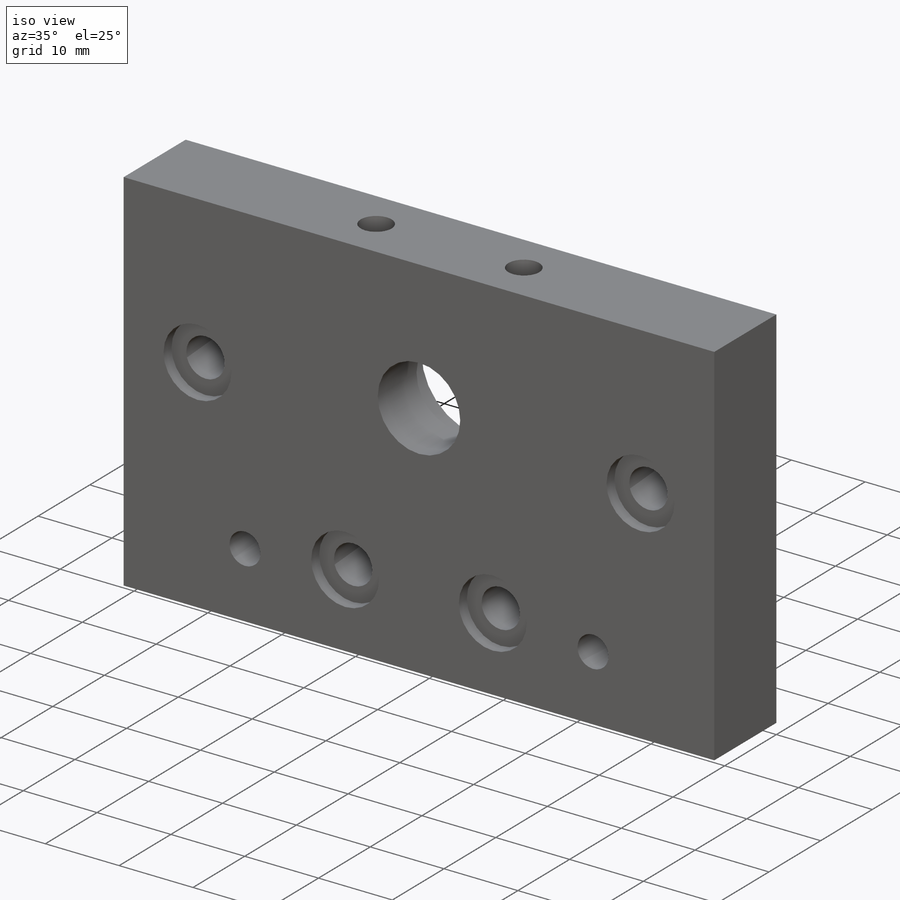
[diagram: iso view]
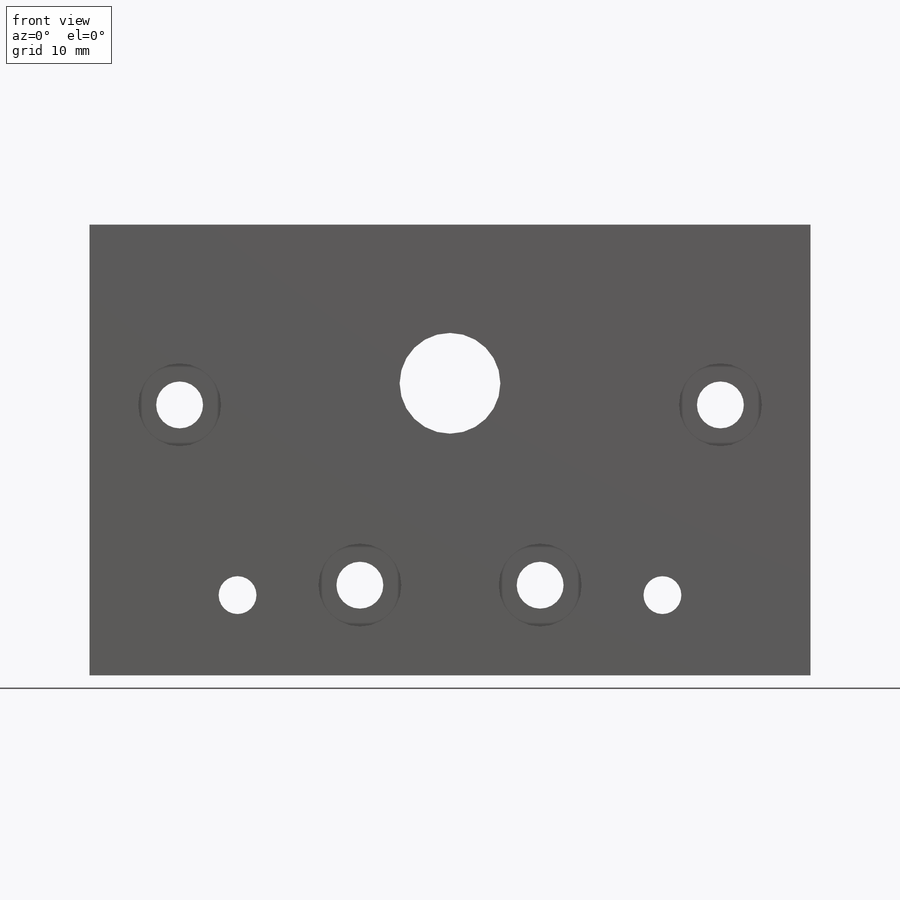
[diagram: front view]
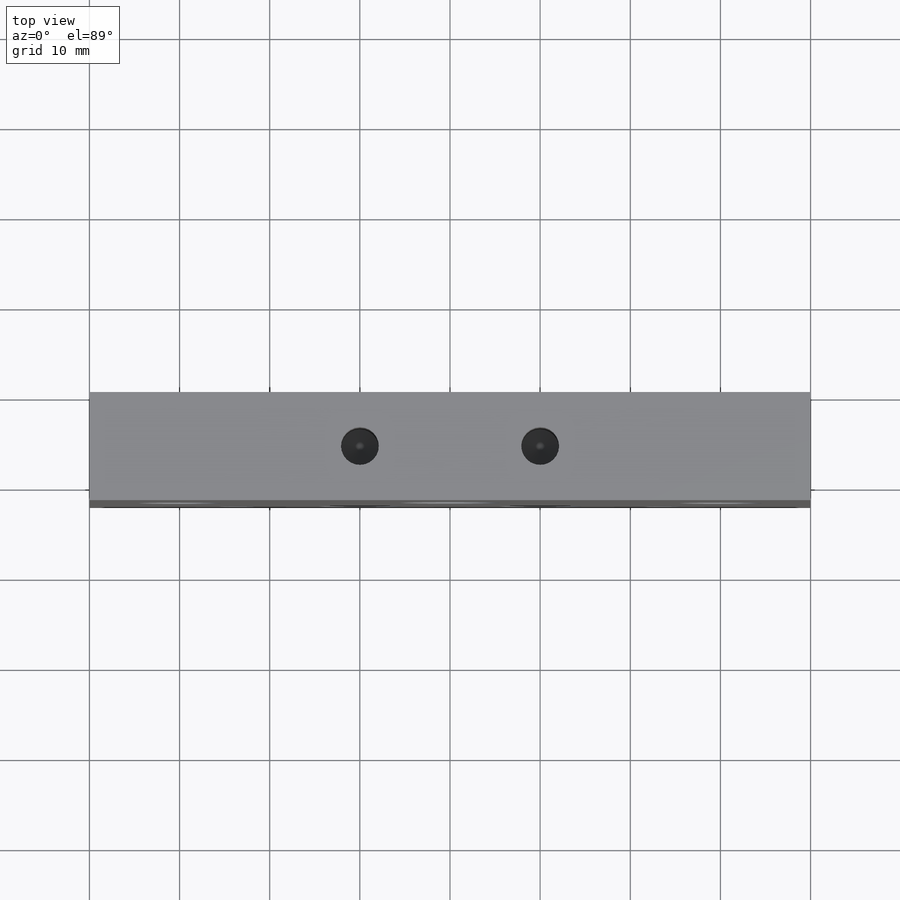
[diagram: top view]
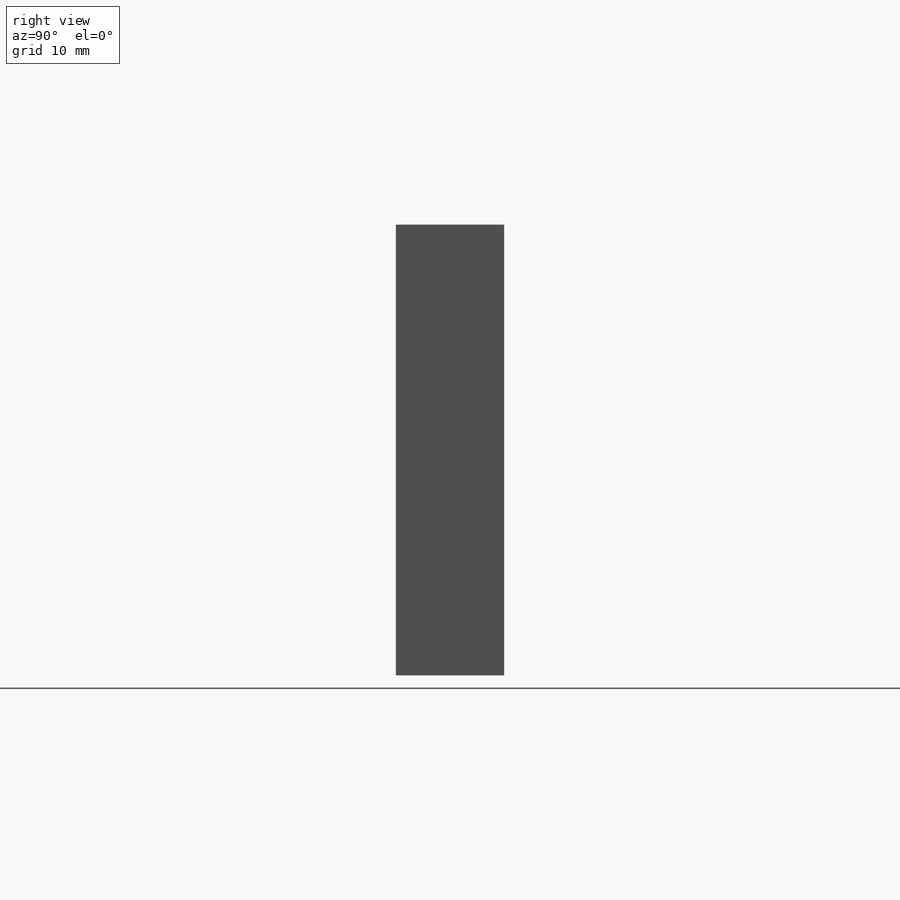
[diagram: right view]
SOLIDWORKS PART (.sldprt)
format: sldprt  version: not decoded by parser v0  size: 257,024 bytes
history: native  units: mm
features: sketch x7, cut_extrude x2, hole x2, material x1, extrude x1 (+13 scaffold rows collapsed)
feature tree (26):
  scaffold x13  (default folders/planes/origin — collapsed)
  material  "6061-T6 (SS)"
  sketch  "Sketch1"  dims[D3=11.176mm D5=5.2mm D1=80.0mm D2=50.0mm D4=32.4mm D6=20.0mm D7=20.0mm D8=20.0mm D9=10.0mm]
  extrude  "Boss-Extrude1"  Depth=12mm
  sketch  "Sketch2"  dims[D1=9.2mm]
  cut_extrude  "Cut-Extrude1"  Depth=1.55mm
  hole  "M5x0.8 Tapped Hole1"  Diameter=4.2mm Depth=12mm
  sketch  "Sketch4"  dims[D1=47.14mm D2=8.9mm]
  sketch  "Sketch3"  dims[hole-wizard template sketch: 60 standard entries collapsed; hole parameters kept: c18.Thru Tap Drill Depth=12.0mm]
  hole  "M5x0.8 Tapped Hole2"  Diameter=4.2mm Depth=14mm
  sketch  "Sketch6"  dims[D1=20.0mm]
  sketch  "Sketch5"  dims[hole-wizard template sketch: 50 standard entries collapsed; hole parameters above]
  sketch  "Sketch7"  dims[D1=16.1mm]
  cut_extrude  "Cut-Extrude2"  Depth=4.5mm
decode coverage: 12 of 12 modeling features carry decoded parameters
note: ~ marks probable driven/reference dimensions
note: suppression state not decoded; provenance and decode notes live in map.json
